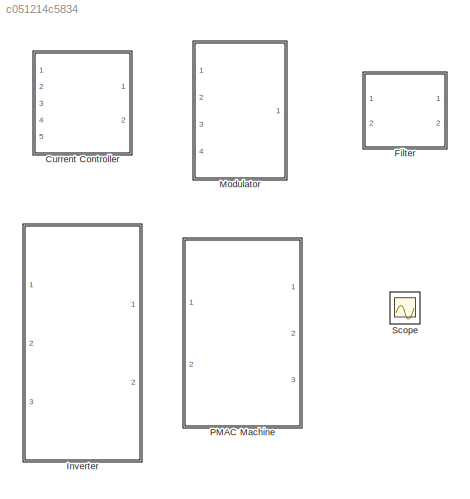
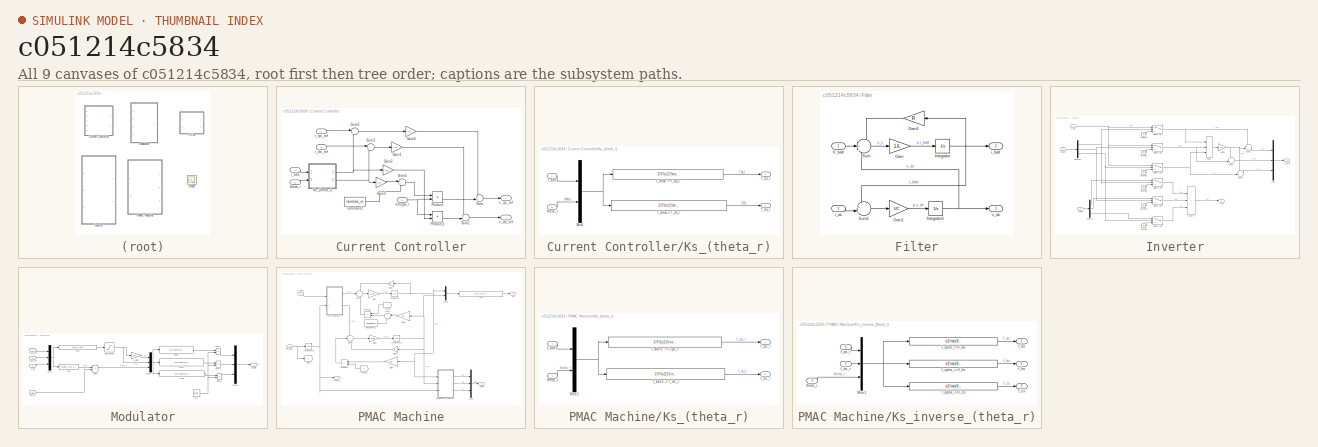
[diagram: thumbnail index - all 9 canvases of the model, root first then tree order]
MODEL slx_c051214c5834
KIND model
CONFIG AbsTol = auto
CONFIG EnableMultiTasking = off
CONFIG FixedStep = auto
CONFIG MaxStep = auto
CONFIG MinStep = auto
CONFIG RelTol = 1e-3
CONFIG SampleTimeConstraint = Unconstrained
CONFIG Solver = VariableStepAuto
CONFIG SolverName = VariableStepAuto
CONFIG StartTime = 0.0
CONFIG StopTime = 10.0
BLOCK [SubSystem] Current Controller
  Ports = [5, 2]
  RequestExecContextInheritance = off
BLOCK [Constant] Current Controller/Constant2
  Value = lambda_m
BLOCK [Gain] Current Controller/Gain1
  Gain = Kd
BLOCK [Gain] Current Controller/Gain2
  Gain = Lq
BLOCK [Gain] Current Controller/Gain3
  Gain = Ld
BLOCK [Gain] Current Controller/Gain4
  Gain = Kq
BLOCK [SubSystem] Current Controller/Ks_(theta_r)
  Ports = [2, 2]
  RequestExecContextInheritance = off
BLOCK [Mux] Current Controller/Ks_(theta_r)/Mux1
  DisplayOption = bar
  Inputs = 2
  Ports = [2, 1]
BLOCK [Inport] Current Controller/Ks_(theta_r)/f_abc
BLOCK [Fcn] Current Controller/Ks_(theta_r)/f_abcs - > f_qs_r
  Expr = 2/3*(u(1)*cos(u(4))+u(2)*cos(u(4)-2*pi/3)+u(3)*cos(u(4)+2*pi/3))
BLOCK [Fcn] Current Controller/Ks_(theta_r)/f_abcs -> f_ds_r
  Expr = 2/3*(u(1)*sin(u(4))+u(2)*sin(u(4)-2*pi/3)+u(3)*sin(u(4)+2*pi/3))
BLOCK [Outport] Current Controller/Ks_(theta_r)/f_ds_r
  Port = 2
  VectorParamsAs1DForOutWhenUnconnected = off
BLOCK [Outport] Current Controller/Ks_(theta_r)/f_qs_r
  VectorParamsAs1DForOutWhenUnconnected = off
BLOCK [Inport] Current Controller/Ks_(theta_r)/theta_r
  Port = 2
BLOCK [Product] Current Controller/Product
  Ports = [2, 1]
BLOCK [Product] Current Controller/Product1
  Ports = [2, 1]
BLOCK [Sum] Current Controller/Sum
  Inputs = ++|
  Ports = [2, 1]
BLOCK [Sum] Current Controller/Sum1
  Inputs = +-|
  Ports = [2, 1]
BLOCK [Sum] Current Controller/Sum2
  Inputs = |+-
  Ports = [2, 1]
BLOCK [Sum] Current Controller/Sum3
  Inputs = |+-
  Ports = [2, 1]
BLOCK [Sum] Current Controller/Sum4
  Inputs = |++
  Ports = [2, 1]
BLOCK [Inport] Current Controller/i_abc
  Port = 4
BLOCK [Inport] Current Controller/i_ds_ref
  Port = 2
BLOCK [Inport] Current Controller/i_qs_ref
BLOCK [Inport] Current Controller/omega_r
  Port = 5
BLOCK [Inport] Current Controller/theta_r
  Port = 3
BLOCK [Outport] Current Controller/v_ds_ref
  Port = 2
  VectorParamsAs1DForOutWhenUnconnected = off
BLOCK [Outport] Current Controller/v_qs_ref
  VectorParamsAs1DForOutWhenUnconnected = off
BLOCK [SubSystem] Filter
  Ports = [2, 2]
  RequestExecContextInheritance = off
BLOCK [Gain] Filter/Gain
  Gain = 1/L
BLOCK [Gain] Filter/Gain1
  Gain = 1/C
BLOCK [Gain] Filter/Gain2
  Gain = R
BLOCK [Integrator] Filter/Integrator
  Ports = [1, 1]
BLOCK [Integrator] Filter/Integrator1
  InitialCondition = V_batt
  Ports = [1, 1]
BLOCK [Sum] Filter/Sum
  Inputs = -+-
  Ports = [3, 1]
BLOCK [Sum] Filter/Sum1
  Inputs = +-|
  Ports = [2, 1]
BLOCK [Inport] Filter/V_batt
BLOCK [Outport] Filter/i_batt
  Port = 2
  VectorParamsAs1DForOutWhenUnconnected = off
BLOCK [Inport] Filter/i_dc
  Port = 2
BLOCK [Outport] Filter/v_dc
  VectorParamsAs1DForOutWhenUnconnected = off
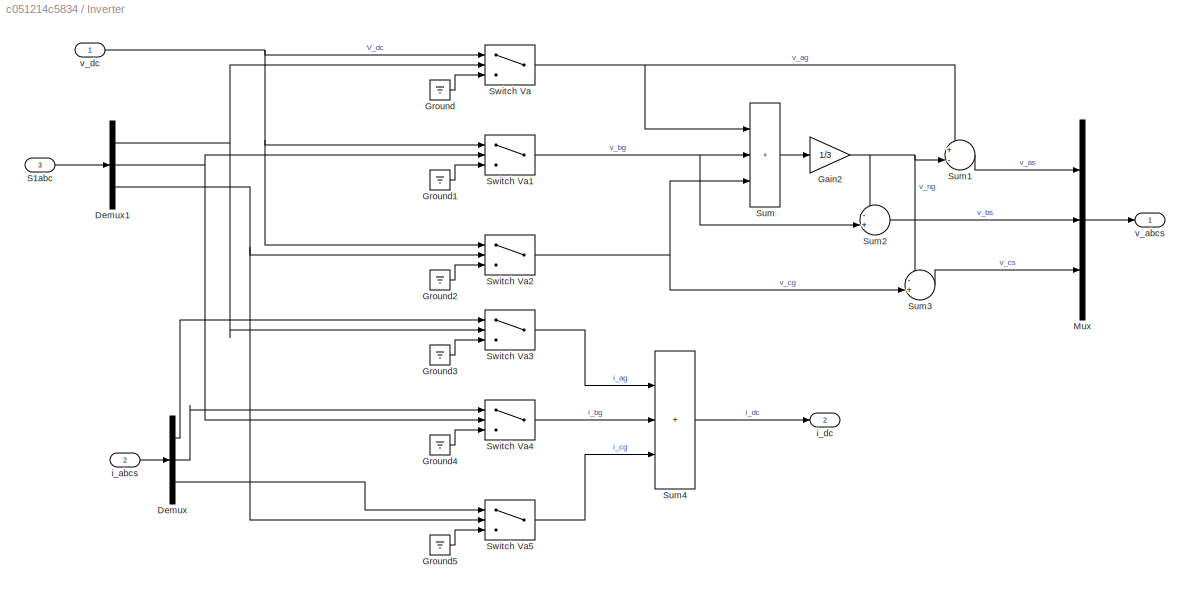
BLOCK [SubSystem] Inverter
  Ports = [3, 2]
  RequestExecContextInheritance = off
BLOCK [Demux] Inverter/Demux
  Outputs = 3
  Ports = [1, 3]
BLOCK [Demux] Inverter/Demux1
  Outputs = 3
  Ports = [1, 3]
BLOCK [Gain] Inverter/Gain2
  Gain = 1/3
BLOCK [Ground] Inverter/Ground
BLOCK [Ground] Inverter/Ground1
BLOCK [Ground] Inverter/Ground2
BLOCK [Ground] Inverter/Ground3
BLOCK [Ground] Inverter/Ground4
BLOCK [Ground] Inverter/Ground5
BLOCK [Mux] Inverter/Mux
  DisplayOption = bar
  Inputs = 3
  Ports = [3, 1]
BLOCK [Inport] Inverter/S1abc
  Port = 3
BLOCK [Sum] Inverter/Sum
  IconShape = rectangular
  Inputs = +++
  Ports = [3, 1]
BLOCK [Sum] Inverter/Sum1
  Inputs = +-|
  Ports = [2, 1]
BLOCK [Sum] Inverter/Sum2
  Inputs = -+|
  Ports = [2, 1]
BLOCK [Sum] Inverter/Sum3
  Inputs = -+|
  Ports = [2, 1]
BLOCK [Sum] Inverter/Sum4
  IconShape = rectangular
  Inputs = +++
  Ports = [3, 1]
BLOCK [Switch] Inverter/Switch Va
  Criteria = u2 > Threshold
  InputSameDT = off
  SaturateOnIntegerOverflow = off
BLOCK [Switch] Inverter/Switch Va1
  Criteria = u2 > Threshold
  InputSameDT = off
  SaturateOnIntegerOverflow = off
BLOCK [Switch] Inverter/Switch Va2
  Criteria = u2 > Threshold
  InputSameDT = off
  SaturateOnIntegerOverflow = off
BLOCK [Switch] Inverter/Switch Va3
  Criteria = u2 > Threshold
  InputSameDT = off
  SaturateOnIntegerOverflow = off
BLOCK [Switch] Inverter/Switch Va4
  Criteria = u2 > Threshold
  InputSameDT = off
  SaturateOnIntegerOverflow = off
BLOCK [Switch] Inverter/Switch Va5
  Criteria = u2 > Threshold
  InputSameDT = off
  SaturateOnIntegerOverflow = off
BLOCK [Inport] Inverter/i_abcs
  Port = 2
BLOCK [Outport] Inverter/i_dc
  Port = 2
  VectorParamsAs1DForOutWhenUnconnected = off
BLOCK [Outport] Inverter/v_abcs
  VectorParamsAs1DForOutWhenUnconnected = off
BLOCK [Inport] Inverter/v_dc
BLOCK [SubSystem] Modulator
  Ports = [4, 1]
  RequestExecContextInheritance = off
BLOCK [Fcn] Modulator/Fcn6
  Expr = u(2)*cos(u(3))-u(1)*cos(3*u(3))
BLOCK [Fcn] Modulator/Fcn7
  Expr = u(2)*cos(u(3)-2*pi/3)-u(1)*cos(3*u(3))
BLOCK [Fcn] Modulator/Fcn8
  Expr = u(2)*cos(u(3)+2*pi/3)-u(1)*cos(3*u(3))
BLOCK [Gain] Modulator/Gain7
  Gain = 1/6
  NameLocation = top
BLOCK [Mux] Modulator/Mux
  DisplayOption = bar
  Inputs = 3
  Ports = [3, 1]
BLOCK [Mux] Modulator/Mux1
  DisplayOption = bar
  Inputs = 3
  Ports = [3, 1]
BLOCK [Mux] Modulator/Mux2
  DisplayOption = bar
  Inputs = 3
  Ports = [3, 1]
BLOCK [Outport] Modulator/S1abc
  VectorParamsAs1DForOutWhenUnconnected = off
BLOCK [Saturate] Modulator/Saturation
  LowerLimit = 0
  NameLocation = top
  UpperLimit = 2/sqrt(3)
BLOCK [Sum] Modulator/Sum
  IconShape = rectangular
  Ports = [2, 1]
BLOCK [Sum] Modulator/Sum1
  IconShape = rectangular
  Inputs = +-
  Ports = [2, 1]
BLOCK [Sum] Modulator/Sum2
  IconShape = rectangular
  Inputs = +-
  Ports = [2, 1]
BLOCK [Sum] Modulator/Sum3
  IconShape = rectangular
  Inputs = +-
  Ports = [2, 1]
BLOCK [Fcn] Modulator/ma
  Expr = (2/u(3))*sqrt(u(1)^2+u(2)^2)
BLOCK [Fcn] Modulator/phi
  Expr = atan2(-u(2),u(1))
BLOCK [Inport] Modulator/theta_r
  Port = 4
BLOCK [Reference] Modulator/tri  REF=simulink/Sources/Repeating
Sequence
  Ports = [0, 1]
  SourceBlock = simulink/Sources/Repeating\nSequence
  SourceProductBaseCode = SL
  SourceType = Repeating table
BLOCK [Inport] Modulator/v_dc
  Port = 3
BLOCK [Inport] Modulator/v_ds_ref
  Port = 2
BLOCK [Inport] Modulator/v_qs_ref
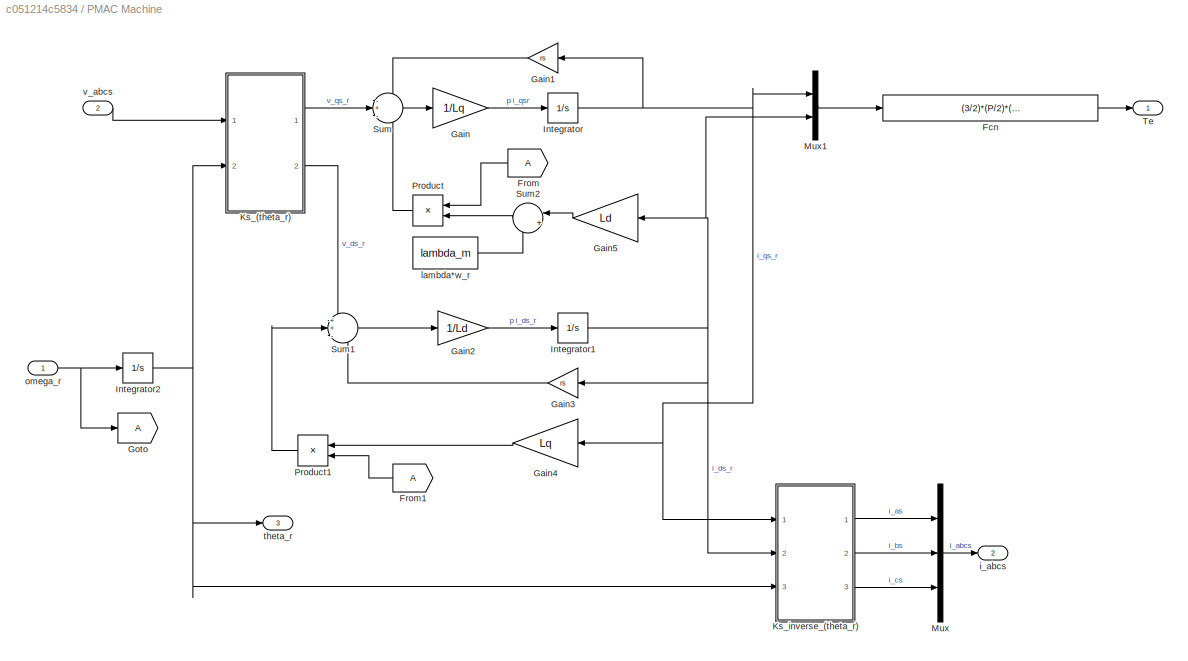
BLOCK [SubSystem] PMAC Machine
  Ports = [2, 3]
  RequestExecContextInheritance = off
BLOCK [Fcn] PMAC Machine/Fcn
  Expr = (3/2)*(P/2)*(lambda_m*u(1) + (Ld-Lq)*u(1)*u(2))
BLOCK [From] PMAC Machine/From
BLOCK [From] PMAC Machine/From1
BLOCK [Gain] PMAC Machine/Gain
  Gain = 1/Lq
BLOCK [Gain] PMAC Machine/Gain1
  Gain = rs
BLOCK [Gain] PMAC Machine/Gain2
  Gain = 1/Ld
BLOCK [Gain] PMAC Machine/Gain3
  Gain = rs
BLOCK [Gain] PMAC Machine/Gain4
  Gain = Lq
BLOCK [Gain] PMAC Machine/Gain5
  Gain = Ld
BLOCK [Goto] PMAC Machine/Goto
BLOCK [Integrator] PMAC Machine/Integrator
  Ports = [1, 1]
BLOCK [Integrator] PMAC Machine/Integrator1
  Ports = [1, 1]
BLOCK [Integrator] PMAC Machine/Integrator2
  Ports = [1, 1]
BLOCK [SubSystem] PMAC Machine/Ks_(theta_r)
  Ports = [2, 2]
  RequestExecContextInheritance = off
BLOCK [Mux] PMAC Machine/Ks_(theta_r)/Mux1
  DisplayOption = bar
  Inputs = 2
  Ports = [2, 1]
BLOCK [Inport] PMAC Machine/Ks_(theta_r)/f_abcs
BLOCK [Fcn] PMAC Machine/Ks_(theta_r)/f_abcs - > f_qs_r
  Expr = 2/3*(u(1)*cos(u(4))+u(2)*cos(u(4)-2*pi/3)+u(3)*cos(u(4)+2*pi/3))
BLOCK [Fcn] PMAC Machine/Ks_(theta_r)/f_abcs -> f_ds_r
  Expr = 2/3*(u(1)*sin(u(4))+u(2)*sin(u(4)-2*pi/3)+u(3)*sin(u(4)+2*pi/3))
BLOCK [Outport] PMAC Machine/Ks_(theta_r)/f_ds_r
  Port = 2
  VectorParamsAs1DForOutWhenUnconnected = off
BLOCK [Outport] PMAC Machine/Ks_(theta_r)/f_qs_r
  VectorParamsAs1DForOutWhenUnconnected = off
BLOCK [Inport] PMAC Machine/Ks_(theta_r)/theta_r
  Port = 2
BLOCK [SubSystem] PMAC Machine/Ks_inverse_(theta_r)
  Ports = [3, 3]
  RequestExecContextInheritance = off
BLOCK [Mux] PMAC Machine/Ks_inverse_(theta_r)/Mux1
  DisplayOption = bar
  Inputs = 3
  Ports = [3, 1]
BLOCK [Outport] PMAC Machine/Ks_inverse_(theta_r)/f_as
  VectorParamsAs1DForOutWhenUnconnected = off
BLOCK [Outport] PMAC Machine/Ks_inverse_(theta_r)/f_bs
  Port = 2
  VectorParamsAs1DForOutWhenUnconnected = off
BLOCK [Outport] PMAC Machine/Ks_inverse_(theta_r)/f_cs
  Port = 3
  VectorParamsAs1DForOutWhenUnconnected = off
BLOCK [Inport] PMAC Machine/Ks_inverse_(theta_r)/f_ds_r
  Port = 2
BLOCK [Fcn] PMAC Machine/Ks_inverse_(theta_r)/f_qdos_r->f_as
  Expr = u(1)*cos(u(3))+u(2)*sin(u(3))
BLOCK [Fcn] PMAC Machine/Ks_inverse_(theta_r)/f_qdos_r->f_bs
  Expr = u(1)*cos(u(3)-2*pi/3)+u(2)*sin(u(3)-2*pi/3)
BLOCK [Fcn] PMAC Machine/Ks_inverse_(theta_r)/f_qdos_r->f_cs
  Expr = u(1)*cos(u(3)+2*pi/3)+u(2)*sin(u(3)+2*pi/3)
BLOCK [Inport] PMAC Machine/Ks_inverse_(theta_r)/f_qs_r
BLOCK [Inport] PMAC Machine/Ks_inverse_(theta_r)/theta_r
  Port = 3
BLOCK [Mux] PMAC Machine/Mux
  DisplayOption = bar
  Inputs = 3
  NameLocation = top
  Ports = [3, 1]
BLOCK [Mux] PMAC Machine/Mux1
  DisplayOption = bar
  Inputs = 2
  NameLocation = top
  Ports = [2, 1]
BLOCK [Product] PMAC Machine/Product
  Ports = [2, 1]
BLOCK [Product] PMAC Machine/Product1
  Ports = [2, 1]
BLOCK [Sum] PMAC Machine/Sum
  Inputs = -+-
  Ports = [3, 1]
BLOCK [Sum] PMAC Machine/Sum1
  Inputs = ++-
  Ports = [3, 1]
BLOCK [Sum] PMAC Machine/Sum2
  Inputs = |++
  Ports = [2, 1]
BLOCK [Outport] PMAC Machine/Te
  VectorParamsAs1DForOutWhenUnconnected = off
BLOCK [Outport] PMAC Machine/i_abcs
  Port = 2
  VectorParamsAs1DForOutWhenUnconnected = off
BLOCK [Constant] PMAC Machine/lambda*w_r
  NameLocation = top
  Value = lambda_m
BLOCK [Inport] PMAC Machine/omega_r
BLOCK [Outport] PMAC Machine/theta_r
  Port = 3
  VectorParamsAs1DForOutWhenUnconnected = off
BLOCK [Inport] PMAC Machine/v_abcs
  Port = 2
BLOCK [Scope] Scope
  Floating = off
  NumInputPorts = 1
  Ports = [1]
  ScopeSpecificationString = Simulink.scopes.TimeScopeBlockCfg('CurrentConfiguration', extmgr.ConfigurationSet(extmgr.Configuration('Core','General UI',true,'FigureColor',[1 1 1]),extmgr.Configuration('Core','Source UI',true),extmgr.Configuration('Sources','WiredSimulink',true),extmgr.Configuration('Visuals','Time Domain',true,'SerializedDisplays',{struct('MinYLimReal','-10','MaxYLimReal','10','YLabelReal','','MinYLimMag','0'...<+1997ch>
LINE Current Controller/Constant2:1 -> Current Controller/Sum4:2
LINE Current Controller/Gain1:1 -> Current Controller/Sum1:1
LINE Current Controller/Gain2:1 -> Current Controller/Product1:2
LINE Current Controller/Gain3:1 -> Current Controller/Sum4:1
LINE Current Controller/Gain4:1 -> Current Controller/Sum:1
NET Current Controller/Ks_(theta_r)/Mux1:1 -> Current Controller/Ks_(theta_r)/f_abcs - > f_qs_r:1, Current Controller/Ks_(theta_r)/f_abcs -> f_ds_r:1
LINE Current Controller/Ks_(theta_r)/f_abc:1 -> Current Controller/Ks_(theta_r)/Mux1:1
LINE Current Controller/Ks_(theta_r)/f_abcs - > f_qs_r:1 -> Current Controller/Ks_(theta_r)/f_qs_r:1
LINE Current Controller/Ks_(theta_r)/f_abcs -> f_ds_r:1 -> Current Controller/Ks_(theta_r)/f_ds_r:1
LINE Current Controller/Ks_(theta_r)/theta_r:1 -> Current Controller/Ks_(theta_r)/Mux1:2
NET Current Controller/Ks_(theta_r):1 -> Current Controller/Gain2:1, Current Controller/Sum2:2
NET Current Controller/Ks_(theta_r):2 -> Current Controller/Gain3:1, Current Controller/Sum3:2
LINE Current Controller/Product1:1 -> Current Controller/Sum1:2
LINE Current Controller/Product:1 -> Current Controller/Sum:2
LINE Current Controller/Sum1:1 -> Current Controller/v_ds_ref:1
LINE Current Controller/Sum2:1 -> Current Controller/Gain4:1
LINE Current Controller/Sum3:1 -> Current Controller/Gain1:1
LINE Current Controller/Sum4:1 -> Current Controller/Product:1
LINE Current Controller/Sum:1 -> Current Controller/v_qs_ref:1
LINE Current Controller/i_abc:1 -> Current Controller/Ks_(theta_r):1
LINE Current Controller/i_ds_ref:1 -> Current Controller/Sum3:1
LINE Current Controller/i_qs_ref:1 -> Current Controller/Sum2:1
NET Current Controller/omega_r:1 -> Current Controller/Product1:1, Current Controller/Product:2
LINE Current Controller/theta_r:1 -> Current Controller/Ks_(theta_r):2
LINE Filter/Gain1:1 -> Filter/Integrator1:1
LINE Filter/Gain2:1 -> Filter/Sum:1
LINE Filter/Gain:1 -> Filter/Integrator:1
NET Filter/Integrator1:1 -> Filter/Sum:3, Filter/v_dc:1
NET Filter/Integrator:1 -> Filter/Gain2:1, Filter/Sum1:1, Filter/i_batt:1
LINE Filter/Sum1:1 -> Filter/Gain1:1
LINE Filter/Sum:1 -> Filter/Gain:1
LINE Filter/V_batt:1 -> Filter/Sum:2
LINE Filter/i_dc:1 -> Filter/Sum1:2
NET Inverter/Demux1:1 -> Inverter/Switch Va3:2, Inverter/Switch Va:2
NET Inverter/Demux1:2 -> Inverter/Switch Va1:2, Inverter/Switch Va4:2
NET Inverter/Demux1:3 -> Inverter/Switch Va2:2, Inverter/Switch Va5:2
LINE Inverter/Demux:1 -> Inverter/Switch Va3:1
LINE Inverter/Demux:2 -> Inverter/Switch Va4:1
LINE Inverter/Demux:3 -> Inverter/Switch Va5:1
NET Inverter/Gain2:1 -> Inverter/Sum1:2, Inverter/Sum2:1, Inverter/Sum3:1
LINE Inverter/Ground1:1 -> Inverter/Switch Va1:3
LINE Inverter/Ground2:1 -> Inverter/Switch Va2:3
LINE Inverter/Ground3:1 -> Inverter/Switch Va3:3
LINE Inverter/Ground4:1 -> Inverter/Switch Va4:3
LINE Inverter/Ground5:1 -> Inverter/Switch Va5:3
LINE Inverter/Ground:1 -> Inverter/Switch Va:3
LINE Inverter/Mux:1 -> Inverter/v_abcs:1
LINE Inverter/S1abc:1 -> Inverter/Demux1:1
LINE Inverter/Sum1:1 -> Inverter/Mux:1
LINE Inverter/Sum2:1 -> Inverter/Mux:2
LINE Inverter/Sum3:1 -> Inverter/Mux:3
LINE Inverter/Sum4:1 -> Inverter/i_dc:1
LINE Inverter/Sum:1 -> Inverter/Gain2:1
NET Inverter/Switch Va1:1 -> Inverter/Sum2:2, Inverter/Sum:2
NET Inverter/Switch Va2:1 -> Inverter/Sum3:2, Inverter/Sum:3
LINE Inverter/Switch Va3:1 -> Inverter/Sum4:1
LINE Inverter/Switch Va4:1 -> Inverter/Sum4:2
LINE Inverter/Switch Va5:1 -> Inverter/Sum4:3
NET Inverter/Switch Va:1 -> Inverter/Sum1:1, Inverter/Sum:1
LINE Inverter/i_abcs:1 -> Inverter/Demux:1
NET Inverter/v_dc:1 -> Inverter/Switch Va1:1, Inverter/Switch Va2:1, Inverter/Switch Va:1
LINE Modulator/Fcn6:1 -> Modulator/Sum1:1
LINE Modulator/Fcn7:1 -> Modulator/Sum2:1
LINE Modulator/Fcn8:1 -> Modulator/Sum3:1
LINE Modulator/Gain7:1 -> Modulator/Mux2:1
LINE Modulator/Mux1:1 -> Modulator/S1abc:1
NET Modulator/Mux2:1 -> Modulator/Fcn6:1, Modulator/Fcn7:1, Modulator/Fcn8:1
NET Modulator/Mux:1 -> Modulator/ma:1, Modulator/phi:1
NET Modulator/Saturation:1 -> Modulator/Gain7:1, Modulator/Mux2:2
LINE Modulator/Sum1:1 -> Modulator/Mux1:1
LINE Modulator/Sum2:1 -> Modulator/Mux1:2
LINE Modulator/Sum3:1 -> Modulator/Mux1:3
LINE Modulator/Sum:1 -> Modulator/Mux2:3
LINE Modulator/ma:1 -> Modulator/Saturation:1
LINE Modulator/phi:1 -> Modulator/Sum:1
LINE Modulator/theta_r:1 -> Modulator/Sum:2
NET Modulator/tri:1 -> Modulator/Sum1:2, Modulator/Sum2:2, Modulator/Sum3:2
LINE Modulator/v_dc:1 -> Modulator/Mux:3
LINE Modulator/v_ds_ref:1 -> Modulator/Mux:2
LINE Modulator/v_qs_ref:1 -> Modulator/Mux:1
LINE PMAC Machine/Fcn:1 -> PMAC Machine/Te:1
LINE PMAC Machine/From1:1 -> PMAC Machine/Product1:2
LINE PMAC Machine/From:1 -> PMAC Machine/Product:1
LINE PMAC Machine/Gain1:1 -> PMAC Machine/Sum:1
LINE PMAC Machine/Gain2:1 -> PMAC Machine/Integrator1:1
LINE PMAC Machine/Gain3:1 -> PMAC Machine/Sum1:3
LINE PMAC Machine/Gain4:1 -> PMAC Machine/Product1:1
LINE PMAC Machine/Gain5:1 -> PMAC Machine/Sum2:1
LINE PMAC Machine/Gain:1 -> PMAC Machine/Integrator:1
NET PMAC Machine/Integrator1:1 -> PMAC Machine/Gain3:1, PMAC Machine/Gain5:1, PMAC Machine/Ks_inverse_(theta_r):2, PMAC Machine/Mux1:2
NET PMAC Machine/Integrator2:1 -> PMAC Machine/Ks_(theta_r):2, PMAC Machine/Ks_inverse_(theta_r):3, PMAC Machine/theta_r:1
NET PMAC Machine/Integrator:1 -> PMAC Machine/Gain1:1, PMAC Machine/Gain4:1, PMAC Machine/Ks_inverse_(theta_r):1, PMAC Machine/Mux1:1
NET PMAC Machine/Ks_(theta_r)/Mux1:1 -> PMAC Machine/Ks_(theta_r)/f_abcs - > f_qs_r:1, PMAC Machine/Ks_(theta_r)/f_abcs -> f_ds_r:1
LINE PMAC Machine/Ks_(theta_r)/f_abcs - > f_qs_r:1 -> PMAC Machine/Ks_(theta_r)/f_qs_r:1
LINE PMAC Machine/Ks_(theta_r)/f_abcs -> f_ds_r:1 -> PMAC Machine/Ks_(theta_r)/f_ds_r:1
LINE PMAC Machine/Ks_(theta_r)/f_abcs:1 -> PMAC Machine/Ks_(theta_r)/Mux1:1
LINE PMAC Machine/Ks_(theta_r)/theta_r:1 -> PMAC Machine/Ks_(theta_r)/Mux1:2
LINE PMAC Machine/Ks_(theta_r):1 -> PMAC Machine/Sum:2
LINE PMAC Machine/Ks_(theta_r):2 -> PMAC Machine/Sum1:1
NET PMAC Machine/Ks_inverse_(theta_r)/Mux1:1 -> PMAC Machine/Ks_inverse_(theta_r)/f_qdos_r->f_as:1, PMAC Machine/Ks_inverse_(theta_r)/f_qdos_r->f_bs:1, PMAC Machine/Ks_inverse_(theta_r)/f_qdos_r->f_cs:1
LINE PMAC Machine/Ks_inverse_(theta_r)/f_ds_r:1 -> PMAC Machine/Ks_inverse_(theta_r)/Mux1:2
LINE PMAC Machine/Ks_inverse_(theta_r)/f_qdos_r->f_as:1 -> PMAC Machine/Ks_inverse_(theta_r)/f_as:1
LINE PMAC Machine/Ks_inverse_(theta_r)/f_qdos_r->f_bs:1 -> PMAC Machine/Ks_inverse_(theta_r)/f_bs:1
LINE PMAC Machine/Ks_inverse_(theta_r)/f_qdos_r->f_cs:1 -> PMAC Machine/Ks_inverse_(theta_r)/f_cs:1
LINE PMAC Machine/Ks_inverse_(theta_r)/f_qs_r:1 -> PMAC Machine/Ks_inverse_(theta_r)/Mux1:1
LINE PMAC Machine/Ks_inverse_(theta_r)/theta_r:1 -> PMAC Machine/Ks_inverse_(theta_r)/Mux1:3
LINE PMAC Machine/Ks_inverse_(theta_r):1 -> PMAC Machine/Mux:1
LINE PMAC Machine/Ks_inverse_(theta_r):2 -> PMAC Machine/Mux:2
LINE PMAC Machine/Ks_inverse_(theta_r):3 -> PMAC Machine/Mux:3
LINE PMAC Machine/Mux1:1 -> PMAC Machine/Fcn:1
LINE PMAC Machine/Mux:1 -> PMAC Machine/i_abcs:1
LINE PMAC Machine/Product1:1 -> PMAC Machine/Sum1:2
LINE PMAC Machine/Product:1 -> PMAC Machine/Sum:3
LINE PMAC Machine/Sum1:1 -> PMAC Machine/Gain2:1
LINE PMAC Machine/Sum2:1 -> PMAC Machine/Product:2
LINE PMAC Machine/Sum:1 -> PMAC Machine/Gain:1
LINE PMAC Machine/lambda*w_r:1 -> PMAC Machine/Sum2:2
NET PMAC Machine/omega_r:1 -> PMAC Machine/Goto:1, PMAC Machine/Integrator2:1
LINE PMAC Machine/v_abcs:1 -> PMAC Machine/Ks_(theta_r):1
note: NET lines group one-source signal fan-out (src -> all destinations, sorted); 1:1 wires keep LINE
